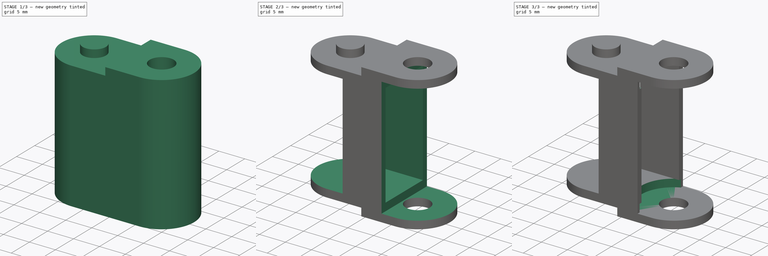
[diagram: build sequence overview — one tinted view per stage of 3, left to right]
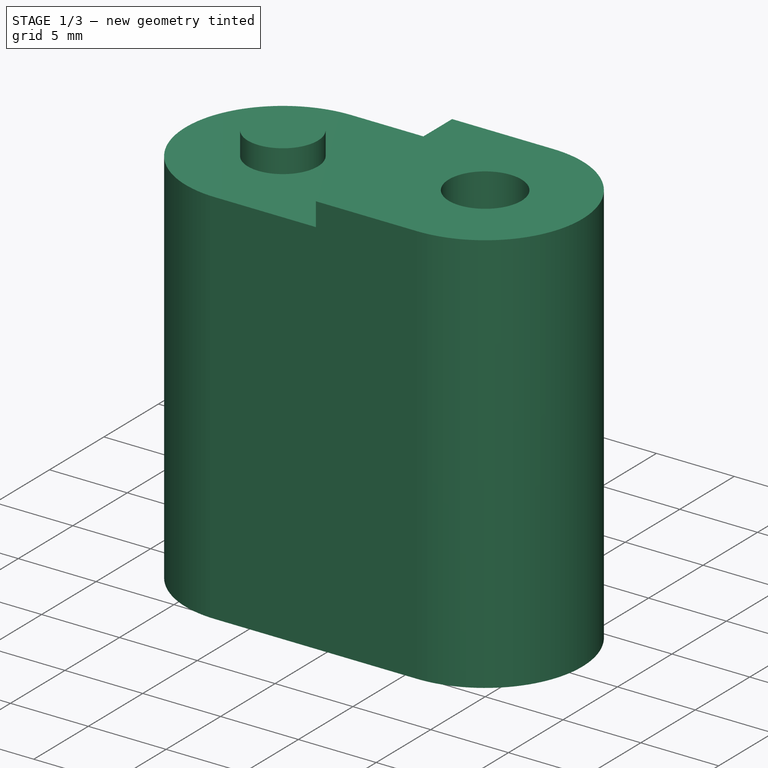
[diagram: stage 1 of 3 — iso view after this stage's code; geometry added in this stage tinted green]
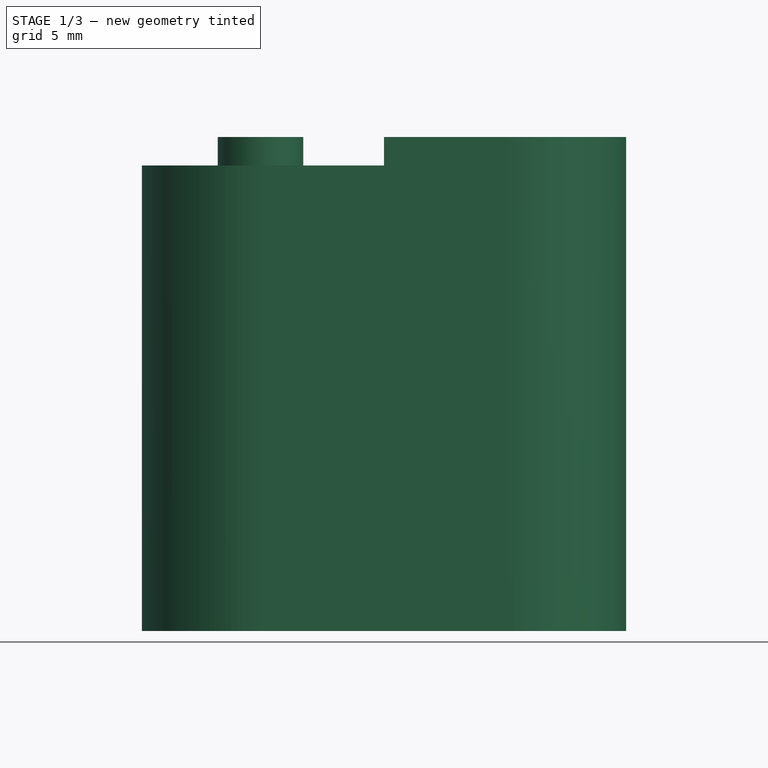
[diagram: stage 1 of 3 — front view after this stage's code; geometry added in this stage tinted green]
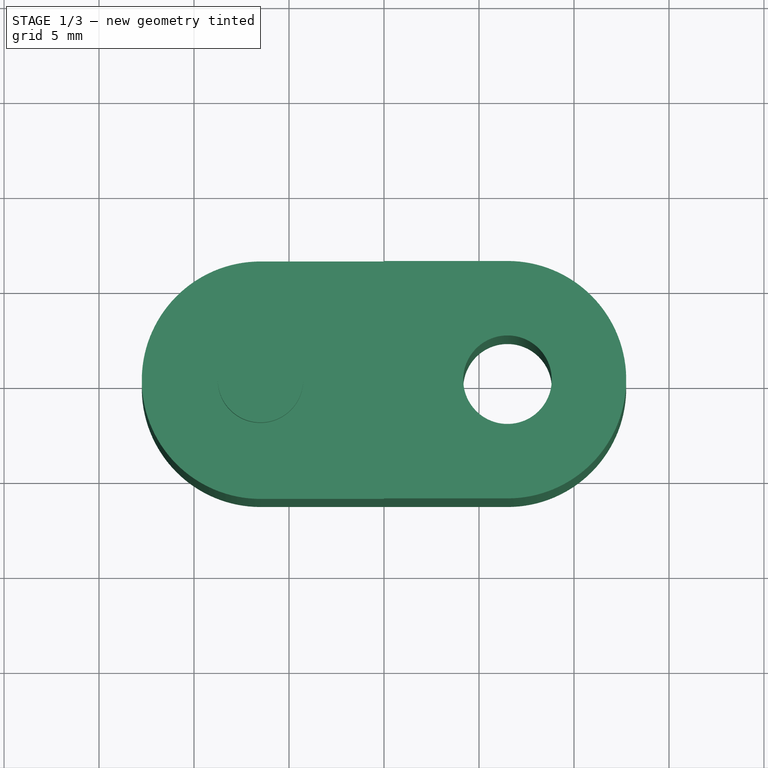
[diagram: stage 1 of 3 — top view after this stage's code; geometry added in this stage tinted green]
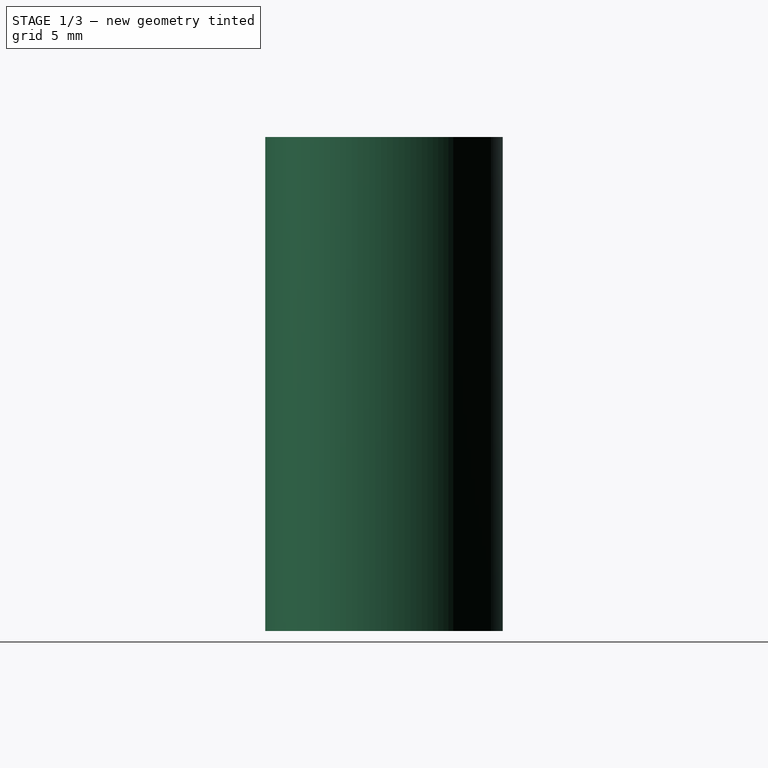
[diagram: stage 1 of 3 — right view after this stage's code; geometry added in this stage tinted green]
FCSTD DOCUMENT  (FreeCAD 0.14R3310 (Git))
Label: 85. IGUS (PORTACABLES GRANDE) CABLE CHAIN
License: CC-BY 3.0
LicenseURL: http://creativecommons.org/licenses/by/3.0/
objects: Sketcher::SketchObject×7, PartDesign::Pocket×6, PartDesign::Pad×1
note: 21 computed .brp shape members not serialized (recipe doc carries the construction recipe); baked Part::Feature solids carry a one-line shape summary decoded from their .brp

FEATURE [Sketcher::SketchObject] Sketch
  sketch-geometry (6):
    g0: Circle CenterX=6.5 CenterY=0 CenterZ=0 NormalX=0 NormalY=0 NormalZ=1 Radius=2.33
    g1: Circle [constr] CenterX=-6.5 CenterY=0 CenterZ=0 NormalX=0 NormalY=0 NormalZ=1 Radius=2.33
    g2: ArcOfCircle CenterX=-6.5 CenterY=0 CenterZ=0 NormalX=0 NormalY=0 NormalZ=1 Radius=6.25 StartAngle=1.5708 EndAngle=4.71239
    g3: ArcOfCircle CenterX=6.5 CenterY=0 CenterZ=0 NormalX=0 NormalY=0 NormalZ=1 Radius=6.25 StartAngle=4.71239 EndAngle=7.85398
    g4: LineSegment StartX=6.5 StartY=6.25 StartZ=0 EndX=-6.5 EndY=6.25 EndZ=0
    g5: LineSegment StartX=-6.5 StartY=-6.25 StartZ=0 EndX=6.5 EndY=-6.25 EndZ=0
  constraints (18):
    c: PointOnObject(g0,g-1)
    c: PointOnObject(g1,g-1)
    c: Equal(g1,g0)
    c: Symmetric(g1,g0,g-2)
    c: Distance(g0,g1) = 13
    c: Radius(g0) = 2.33
    c: Coincident(g2,g1)
    c: Coincident(g3,g0)
    c: Coincident(g4,g3)
    c: Coincident(g4,g2)
    c: Tangent(g4,g2)
    c: Horizontal(g4)
    c: Tangent(g4,g3)
    c: Coincident(g5,g2)
    c: Coincident(g5,g3)
    c: Horizontal(g5)
    c: Tangent(g2,g5)
    c: Radius(g2) = 6.25
FEATURE [PartDesign::Pad] Pad
  Length = 26
  Length2 = 100
  Sketch = -> Sketch
  Type = 0
FEATURE [Sketcher::SketchObject] Sketch001
  ExternalGeometry = -> [Pad]
  Placement = pos=(0,0,26) rot=(0,0,1;0rad)
  Support = -> Pad [Face7]
  sketch-geometry (5):
    g0: ArcOfCircle CenterX=-6.5 CenterY=0 CenterZ=0 NormalX=0 NormalY=0 NormalZ=1 Radius=6.25 StartAngle=1.5708 EndAngle=4.71239
    g1: LineSegment StartX=-6.5 StartY=6.25 StartZ=0 EndX=0 EndY=6.25 EndZ=0
    g2: LineSegment StartX=-6.5 StartY=-6.25 StartZ=0 EndX=0 EndY=-6.25 EndZ=0
    g3: LineSegment StartX=0 StartY=6.25 StartZ=0 EndX=0 EndY=-6.25 EndZ=0
    g4: Circle CenterX=-6.5 CenterY=0 CenterZ=0 NormalX=0 NormalY=0 NormalZ=1 Radius=2.25
  constraints (13):
    c: Coincident(g0,g-3)
    c: Coincident(g0,g-3)
    c: Coincident(g0,g-3)
    c: Horizontal(g1)
    c: PointOnObject(g1,g-2)
    c: Coincident(g1,g0)
    c: Horizontal(g2)
    c: PointOnObject(g2,g-2)
    c: Coincident(g0,g2)
    c: Coincident(g3,g1)
    c: Coincident(g3,g2)
    c: Coincident(g4,g0)
    c: Radius(g4) = 2.25
FEATURE [PartDesign::Pocket] Pocket
  Length = 1.5
  Sketch = -> Sketch001
  Type = 0
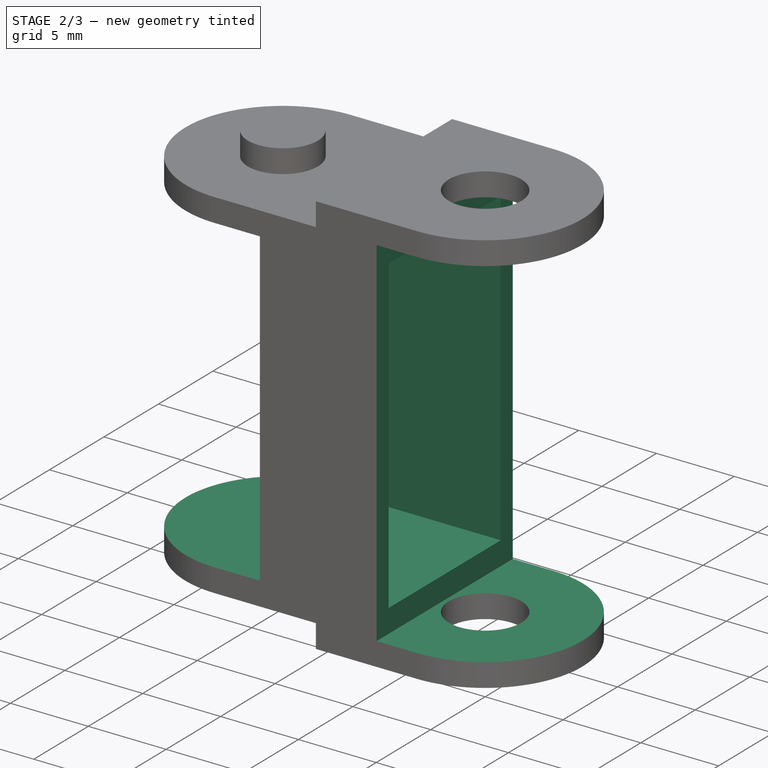
[diagram: stage 2 of 3 — iso view after this stage's code; geometry added in this stage tinted green]
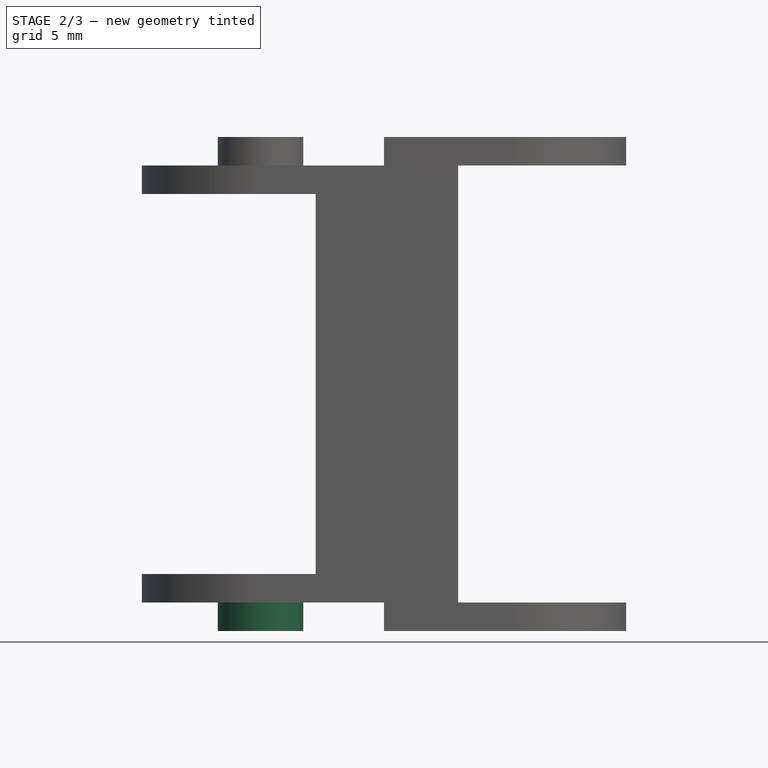
[diagram: stage 2 of 3 — front view after this stage's code; geometry added in this stage tinted green]
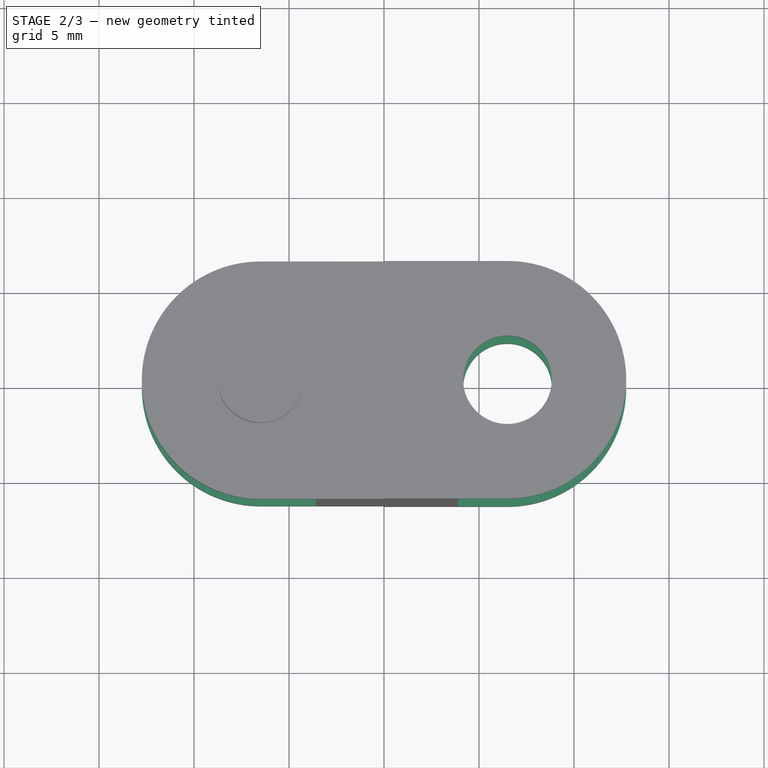
[diagram: stage 2 of 3 — top view after this stage's code; geometry added in this stage tinted green]
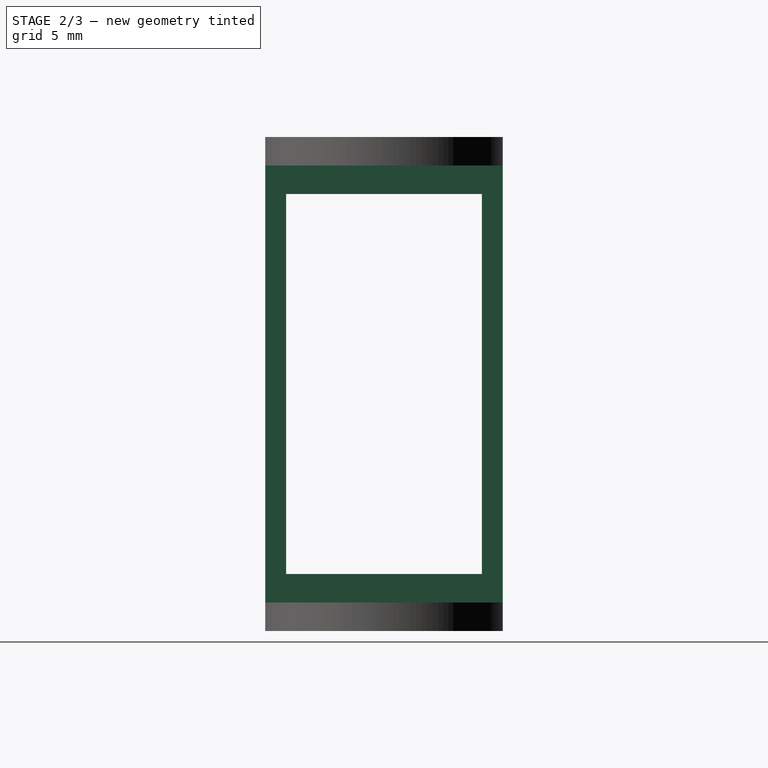
[diagram: stage 2 of 3 — right view after this stage's code; geometry added in this stage tinted green]
FEATURE [Sketcher::SketchObject] Sketch002
  ExternalGeometry = -> [Pocket]
  Placement = pos=(0,0,0) rot=(1,0,0;3.14159rad)
  Support = -> Pocket [Face2]
  sketch-geometry (5):
    g0: LineSegment StartX=0 StartY=6.25 StartZ=0 EndX=-6.5 EndY=6.25 EndZ=0
    g1: LineSegment StartX=0 StartY=-6.25 StartZ=0 EndX=0 EndY=6.25 EndZ=0
    g2: LineSegment StartX=0 StartY=-6.25 StartZ=0 EndX=-6.5 EndY=-6.25 EndZ=0
    g3: ArcOfCircle CenterX=-6.5 CenterY=0 CenterZ=0 NormalX=0 NormalY=0 NormalZ=1 Radius=6.25 StartAngle=1.5708 EndAngle=4.71239
    g4: Circle CenterX=-6.5 CenterY=0 CenterZ=0 NormalX=0 NormalY=0 NormalZ=1 Radius=2.25
  constraints (12):
    c: Coincident(g-4,g0)
    c: Coincident(g0,g-6)
    c: Horizontal(g0)
    c: Coincident(g-5,g1)
    c: Coincident(g1,g0)
    c: Coincident(g2,g1)
    c: Coincident(g2,g-6)
    c: Coincident(g3,g-6)
    c: Coincident(g3,g0)
    c: Coincident(g3,g2)
    c: Coincident(g4,g3)
    c: Radius(g4) = 2.25
FEATURE [PartDesign::Pocket] Pocket001
  Length = 1.5
  Sketch = -> Sketch002
  Type = 0
FEATURE [Sketcher::SketchObject] Sketch003
  Placement = pos=(0,6.25,0) rot=(0,0.707107,0.707107;3.14159rad)
  Support = -> Pocket001 [Face4]
  sketch-geometry (8):
    g0: LineSegment StartX=-23.9 StartY=24.5 StartZ=0 EndX=-3.9 EndY=24.5 EndZ=0
    g1: LineSegment StartX=-3.9 StartY=24.5 StartZ=0 EndX=-3.9 EndY=1.5 EndZ=0
    g2: LineSegment StartX=-3.9 StartY=1.5 StartZ=0 EndX=-23.9 EndY=1.5 EndZ=0
    g3: LineSegment StartX=-23.9 StartY=1.5 StartZ=0 EndX=-23.9 EndY=24.5 EndZ=0
    g4: LineSegment StartX=3.6 StartY=23 StartZ=0 EndX=23.6 EndY=23 EndZ=0
    g5: LineSegment StartX=23.6 StartY=23 StartZ=0 EndX=23.6 EndY=3 EndZ=0
    g6: LineSegment StartX=23.6 StartY=3 StartZ=0 EndX=3.6 EndY=3 EndZ=0
    g7: LineSegment StartX=3.6 StartY=3 StartZ=0 EndX=3.6 EndY=23 EndZ=0
  constraints (24):
    c: Coincident(g0,g1)
    c: Coincident(g1,g2)
    c: Coincident(g2,g3)
    c: Coincident(g3,g0)
    c: Horizontal(g0)
    c: Horizontal(g2)
    c: Vertical(g1)
    c: Vertical(g3)
    c: Coincident(g4,g5)
    c: Coincident(g5,g6)
    c: Coincident(g6,g7)
    c: Coincident(g7,g4)
    c: Horizontal(g4)
    c: Horizontal(g6)
    c: Vertical(g5)
    c: Vertical(g7)
    c: DistanceX(g-2,g4) = 3.6
    c: DistanceX(g-2,g0) = -3.9
    c: Distance(g3) = 23
    c: Distance(g5) = 20
    c: DistanceY(g-1,g6) = 3
    c: Distance(g4) = 20
    c: DistanceY(g-1,g1) = 1.5
    c: Distance(g0) = 20
FEATURE [PartDesign::Pocket] Pocket002
  Length = 5
  Sketch = -> Sketch003
  Type = 1
FEATURE [Sketcher::SketchObject] Sketch004
  ExternalGeometry = -> [Pocket002]
  Placement = pos=(-3.6,0,0) rot=(0.57735,-0.57735,-0.57735;2.0944rad)
  Support = -> Pocket002 [Face17]
  sketch-geometry (4):
    g0: LineSegment StartX=-5.15 StartY=23 StartZ=0 EndX=5.15 EndY=23 EndZ=0
    g1: LineSegment StartX=5.15 StartY=23 StartZ=0 EndX=5.15 EndY=3 EndZ=0
    g2: LineSegment StartX=5.15 StartY=3 StartZ=0 EndX=-5.15 EndY=3 EndZ=0
    g3: LineSegment StartX=-5.15 StartY=3 StartZ=0 EndX=-5.15 EndY=23 EndZ=0
  constraints (12):
    c: Coincident(g0,g1)
    c: Coincident(g1,g2)
    c: Coincident(g2,g3)
    c: Coincident(g3,g0)
    c: Horizontal(g0)
    c: Horizontal(g2)
    c: Vertical(g1)
    c: Vertical(g3)
    c: Distance(g0,g-3) = 1.1
    c: Distance(g0,g-4) = 1.1
    c: DistanceY(g-1,g1) = 3
    c: Distance(g1) = 20
FEATURE [PartDesign::Pocket] Pocket003
  Length = 5
  Sketch = -> Sketch004
  Type = 1
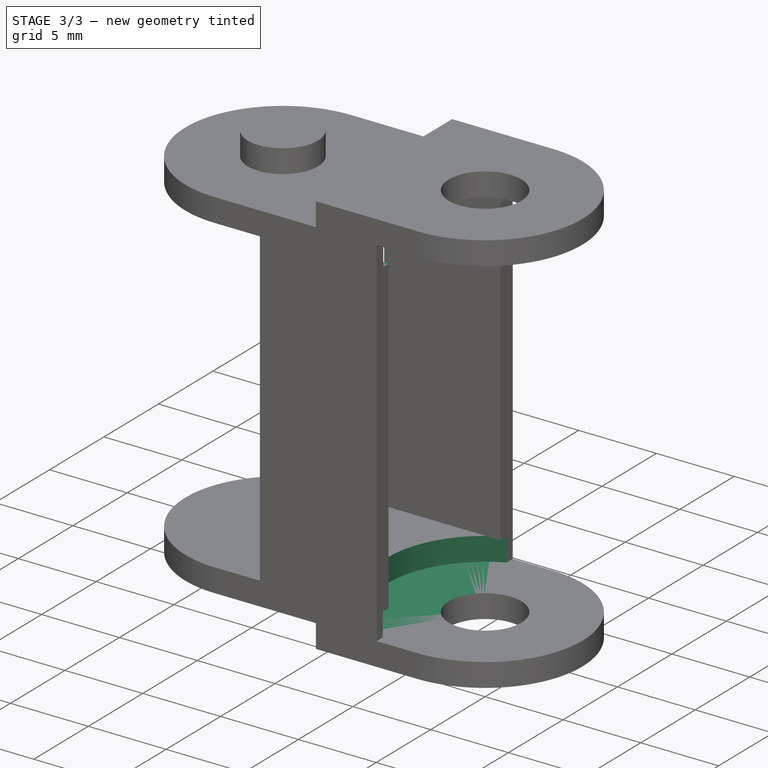
[diagram: stage 3 of 3 — iso view after this stage's code; geometry added in this stage tinted green]
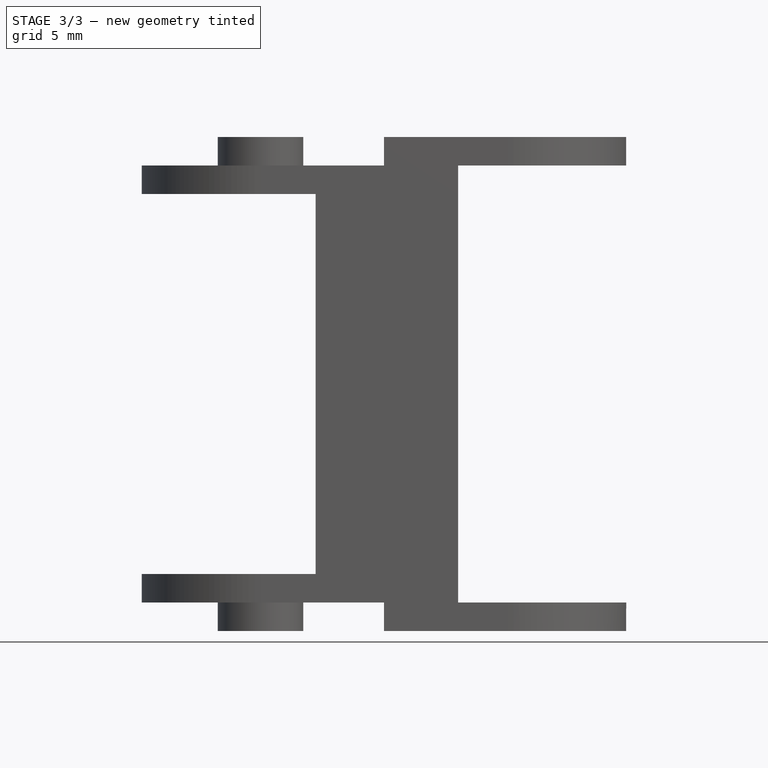
[diagram: stage 3 of 3 — front view after this stage's code; geometry added in this stage tinted green]
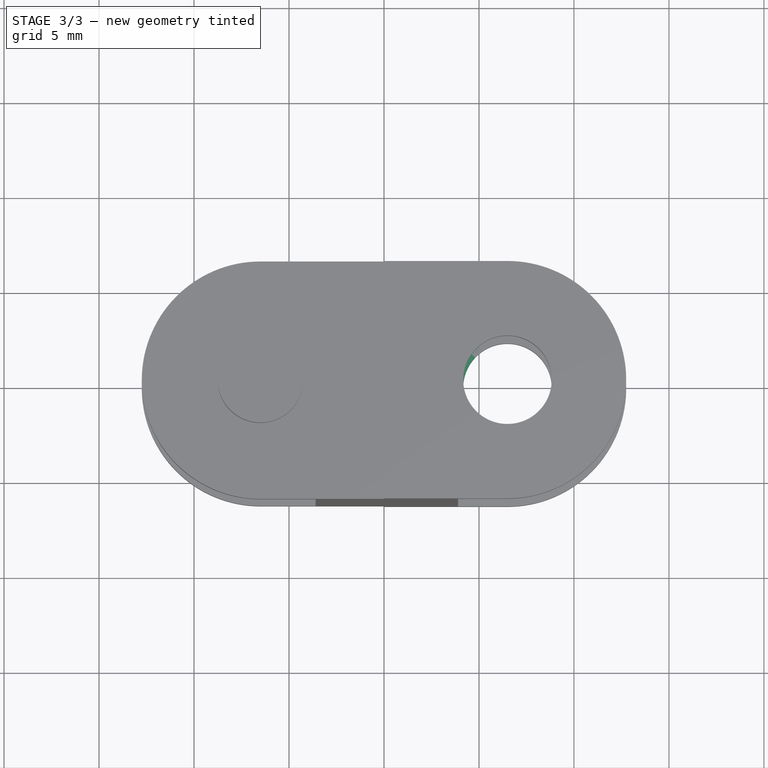
[diagram: stage 3 of 3 — top view after this stage's code; geometry added in this stage tinted green]
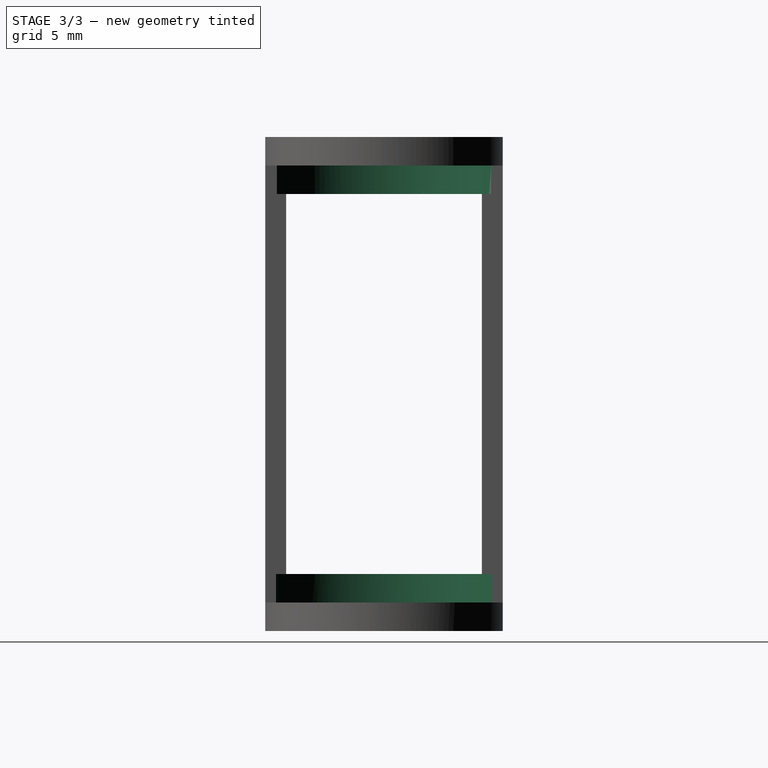
[diagram: stage 3 of 3 — right view after this stage's code; geometry added in this stage tinted green]
FEATURE [Sketcher::SketchObject] Sketch005
  ExternalGeometry = -> [Pocket003]
  Placement = pos=(0,0,24.5) rot=(1,0,0;3.14159rad)
  Support = -> Pocket003 [Face9]
  sketch-geometry (1):
    g0: Circle CenterX=6.60251 CenterY=0 CenterZ=0 NormalX=0 NormalY=0 NormalZ=1 Radius=6.25084
  constraints (2):
    c: PointOnObject(g0,g-1)
    c: PointOnObject(g-3,g0)
FEATURE [PartDesign::Pocket] Pocket004
  Length = 1.5
  Reversed = true
  Sketch = -> Sketch005
  Type = 0
FEATURE [Sketcher::SketchObject] Sketch006
  ExternalGeometry = -> [Pocket004]
  Placement = pos=(0,0,1.5) rot=(0,0,1;0rad)
  Support = -> Pocket004 [Face8]
  sketch-geometry (1):
    g0: Circle CenterX=6.5 CenterY=0 CenterZ=0 NormalX=0 NormalY=0 NormalZ=1 Radius=6.25
  constraints (2):
    c: Coincident(g0,g-3)
    c: PointOnObject(g-3,g0)
FEATURE [PartDesign::Pocket] Pocket005
  Length = 1.5
  Reversed = true
  Sketch = -> Sketch006
  Type = 0
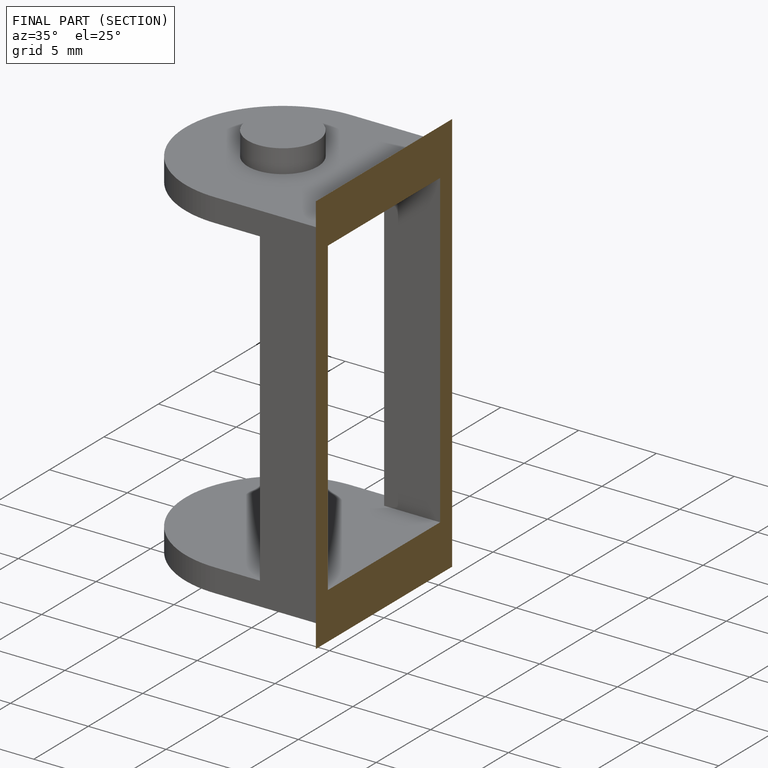
[diagram: finished part — half-section view (interior)]
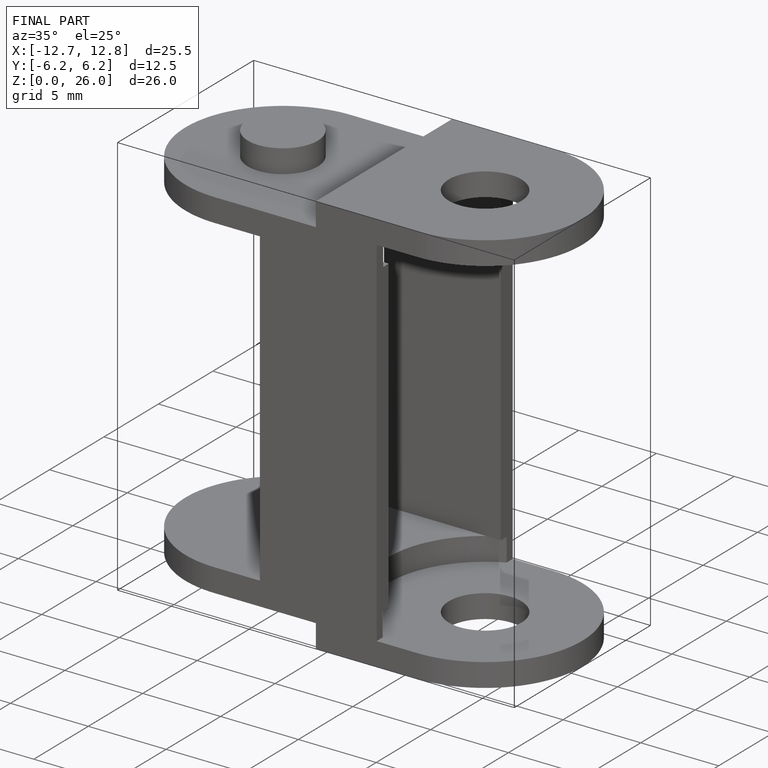
[diagram: finished part — iso view with bounding-box wireframe]
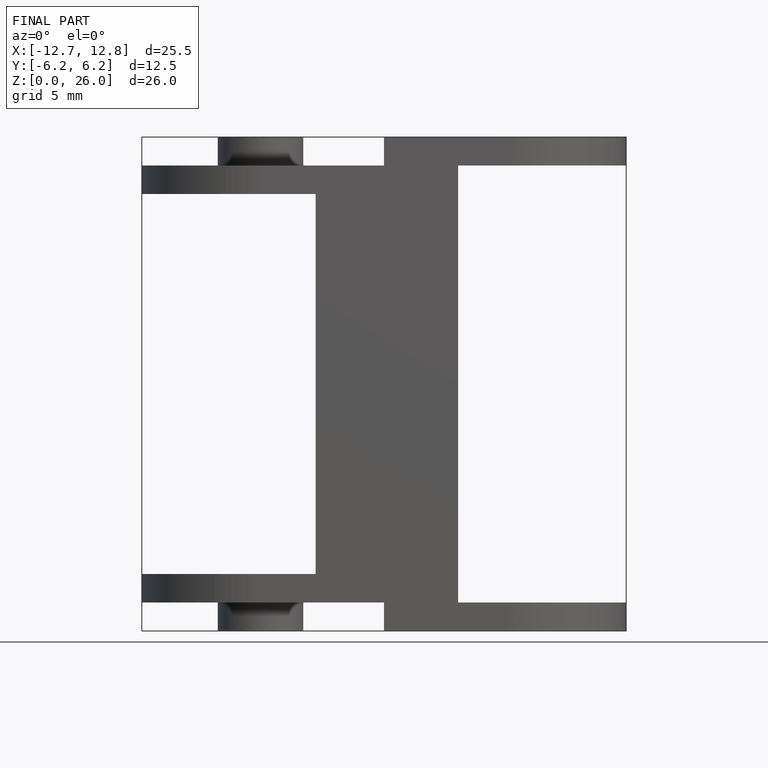
[diagram: finished part — front view with bounding-box wireframe]
